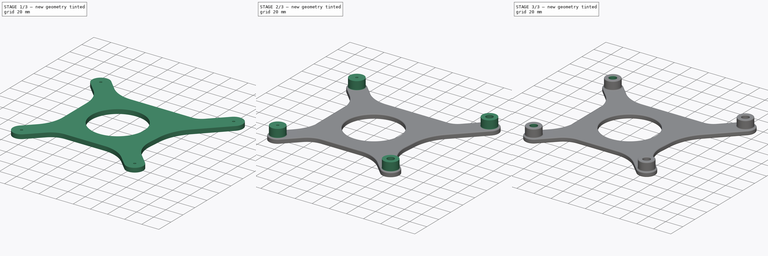
[diagram: build sequence overview — one tinted view per stage of 3, left to right]
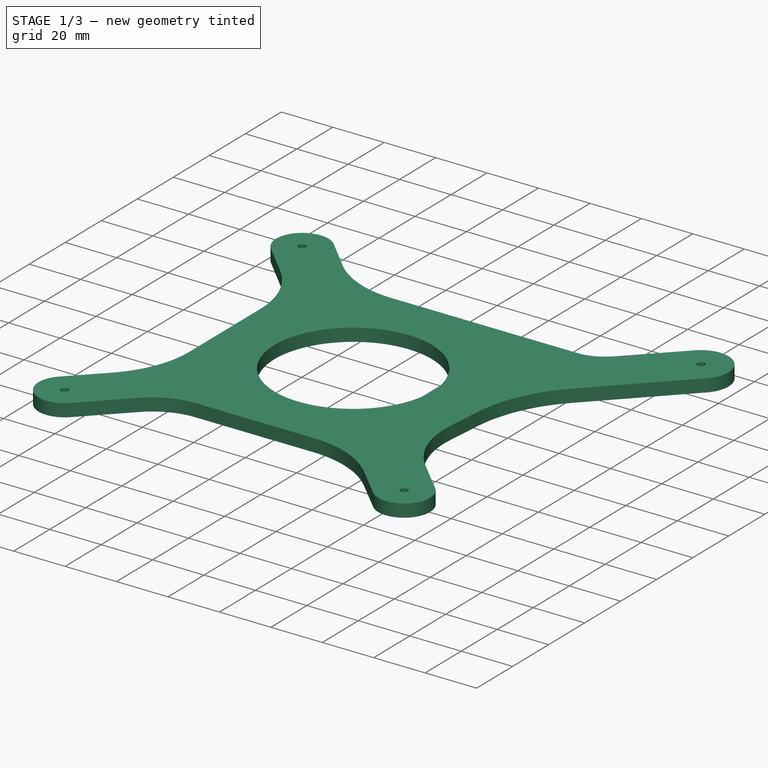
[diagram: stage 1 of 3 — iso view after this stage's code; geometry added in this stage tinted green]
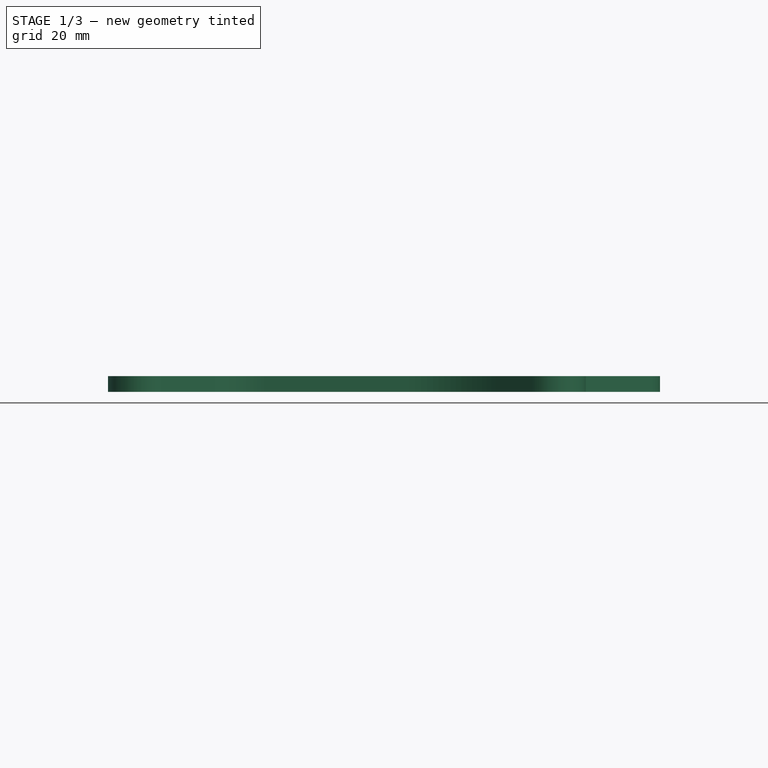
[diagram: stage 1 of 3 — front view after this stage's code; geometry added in this stage tinted green]
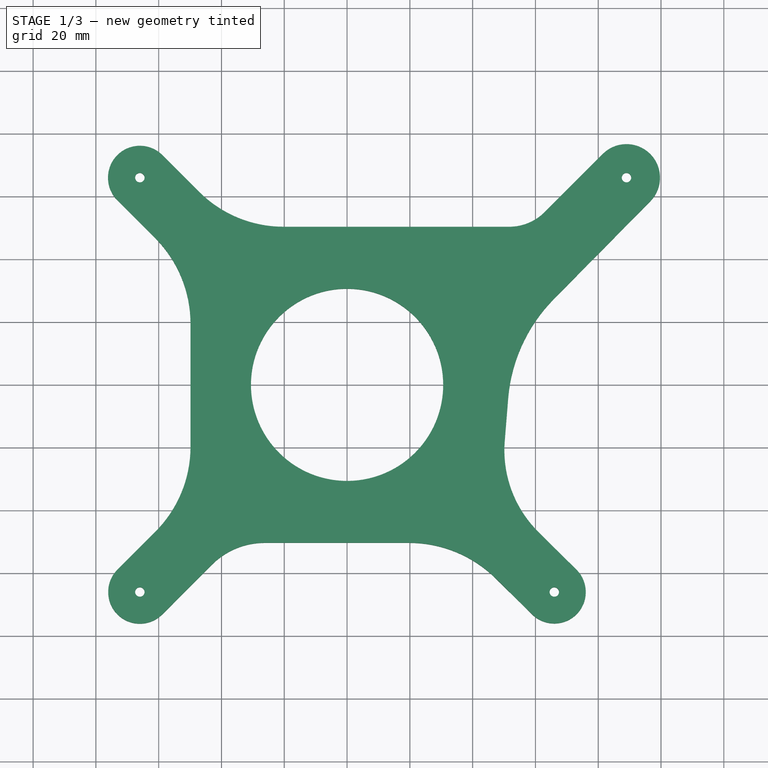
[diagram: stage 1 of 3 — top view after this stage's code; geometry added in this stage tinted green]
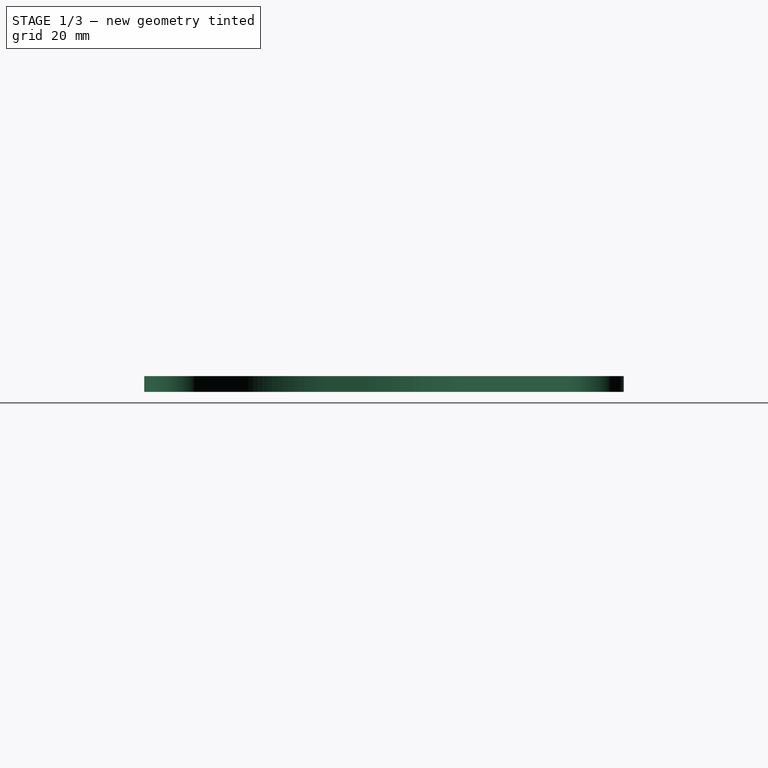
[diagram: stage 1 of 3 — right view after this stage's code; geometry added in this stage tinted green]
FCSTD DOCUMENT  (FreeCAD 1.0R39319 (Git))
Label: mitx-base
License: All rights reserved
LicenseURL: https://en.wikipedia.org/wiki/All_rights_reserved
objects: PartDesign::Fillet×4, Sketcher::SketchObject×3, PartDesign::Pad×2, PartDesign::Pocket×1, PartDesign::Body×1
note: 28 computed .brp shape members not serialized (recipe doc carries the construction recipe); baked Part::Feature solids carry a one-line shape summary decoded from their .brp

FEATURE [Sketcher::SketchObject] Sketch
  ArcFitTolerance = 1e-06
  AttachmentSupport = -> [XY_Plane]
  FullyConstrained = false
  MakeInternals = false
  MapMode = 5
  sketch-geometry (44):
    g0: LineSegment [constr] StartX=-66 StartY=-66 StartZ=0 EndX=66 EndY=-66 EndZ=0
    g1: LineSegment [constr] StartX=66 StartY=-66 StartZ=0 EndX=66 EndY=66 EndZ=0
    g2: LineSegment [constr] StartX=66 StartY=66 StartZ=0 EndX=-66 EndY=66 EndZ=0
    g3: LineSegment [constr] StartX=-66 StartY=66 StartZ=0 EndX=-66 EndY=-66 EndZ=0
    g4: GeomPoint [constr] X=0 Y=0 Z=0
    g5: LineSegment [constr] StartX=66 StartY=66 StartZ=0 EndX=89 EndY=66 EndZ=0
    g6: GeomPoint [constr] X=0 Y=0 Z=0
    g7: LineSegment [constr] StartX=-76 StartY=76 StartZ=0 EndX=-76 EndY=-76 EndZ=0
    g8: LineSegment [constr] StartX=-76 StartY=-76 StartZ=0 EndX=95 EndY=-76 EndZ=0
    g9: LineSegment [constr] StartX=95 StartY=76 StartZ=0 EndX=-76 EndY=76 EndZ=0
    g10: Circle CenterX=-66 CenterY=66 CenterZ=0 NormalX=0 NormalY=0 NormalZ=1 AngleXU=0 Radius=1.5
    g11: Circle CenterX=89 CenterY=66 CenterZ=0 NormalX=0 NormalY=0 NormalZ=1 AngleXU=0 Radius=1.5
    g12: Circle CenterX=66 CenterY=-66 CenterZ=0 NormalX=0 NormalY=0 NormalZ=1 AngleXU=0 Radius=1.5
    g13: Circle CenterX=-66 CenterY=-66 CenterZ=0 NormalX=0 NormalY=0 NormalZ=1 AngleXU=0 Radius=1.5
    g14: LineSegment StartX=51.6439 StartY=50.3493 StartZ=0 EndX=-20.2323 EndY=50.3493 EndZ=0
    g15: LineSegment StartX=-26.2143 StartY=-50.3222 StartZ=0 EndX=19.7096 EndY=-50.3222 EndZ=0
    g16: GeomPoint [constr] X=0 Y=0 Z=0
    g17: ArcOfCircle CenterX=-66 CenterY=66 CenterZ=0 NormalX=0 NormalY=0 NormalZ=1 AngleXU=0 Radius=10.15 StartAngle=0.785414 EndAngle=3.92696
    g18: LineSegment StartX=-58.823 StartY=73.1772 StartZ=0 EndX=-47.1399 EndY=61.4945 EndZ=0
    g19: LineSegment StartX=-73.1774 StartY=58.8231 StartZ=0 EndX=-61.1843 EndY=46.8293 EndZ=0
    g20: ArcOfCircle CenterX=-66 CenterY=-66 CenterZ=0 NormalX=0 NormalY=0 NormalZ=1 AngleXU=0 Radius=10.09 StartAngle=2.35616 EndAngle=5.49856
    g21: LineSegment StartX=-73.1345 StartY=-58.8651 StartZ=0 EndX=-61.0894 EndY=-46.8207 EndZ=0
    g22: LineSegment StartX=-58.8598 StartY=-73.1292 StartZ=0 EndX=-43.0644 EndY=-57.3093 EndZ=0
    g23: ArcOfCircle CenterX=89 CenterY=66 CenterZ=0 NormalX=0 NormalY=0 NormalZ=1 AngleXU=0 Radius=10.68 StartAngle=5.50439 EndAngle=8.63995
    g24: LineSegment StartX=96.6016 StartY=58.4982 StartZ=0 EndX=66 EndY=27.4894 EndZ=0
    g25: LineSegment StartX=81.4487 StartY=73.5476 StartZ=0 EndX=62.941 EndY=55.0304 EndZ=0
    g26: ArcOfCircle CenterX=66 CenterY=-66 CenterZ=0 NormalX=0 NormalY=0 NormalZ=1 AngleXU=0 Radius=10.02 StartAngle=3.93339 EndAngle=7.07336
    g27: LineSegment StartX=58.9603 StartY=-73.1304 StartZ=0 EndX=47.3497 EndY=-61.6675 EndZ=0
    g28: LineSegment StartX=73.0513 StartY=-58.8811 StartZ=0 EndX=60.968 EndY=-46.9126 EndZ=0
    g29: LineSegment StartX=-49.8685 StartY=19.5085 StartZ=0 EndX=-49.8692 EndY=-19.7347 EndZ=0
    g30: LineSegment StartX=50.2197 StartY=-17.8986 StartZ=0 EndX=51.3102 EndY=-4.4012 EndZ=0
    g31: ArcOfCircle CenterX=-88.5062 CenterY=19.5092 CenterZ=0 NormalX=0 NormalY=0 NormalZ=1 AngleXU=0 Radius=38.6377 StartAngle=6.28317 EndAngle=7.06855
    g32: GeomPoint [constr] X=-49.8682 Y=35.5124 Z=0
    g33: ArcOfCircle CenterX=-88.1745 CenterY=-19.734 CenterZ=0 NormalX=0 NormalY=0 NormalZ=1 AngleXU=0 Radius=38.3053 StartAngle=5.49776 EndAngle=6.28317
    g34: GeomPoint [constr] X=-49.8695 Y=-35.6015 Z=0
    g35: ArcOfCircle CenterX=-20.2323 CenterY=88.4029 CenterZ=0 NormalX=0 NormalY=0 NormalZ=1 AngleXU=0 Radius=38.0537 StartAngle=3.92701 EndAngle=4.71239
    g36: GeomPoint [constr] X=-35.9943 Y=50.3493 Z=0
    g37: ArcOfCircle CenterX=51.6439 CenterY=66.3217 CenterZ=0 NormalX=0 NormalY=0 NormalZ=1 AngleXU=0 Radius=15.9725 StartAngle=4.71239 EndAngle=5.49804
    g38: ArcOfCircle CenterX=102.196 CenterY=-8.51226 CenterZ=0 NormalX=0 NormalY=0 NormalZ=1 AngleXU=0 Radius=51.0518 StartAngle=2.35889 EndAngle=3.06098
    g39: ArcOfCircle CenterX=-26.2143 CenterY=-74.1334 CenterZ=0 NormalX=0 NormalY=0 NormalZ=1 AngleXU=0 Radius=23.8112 StartAngle=1.5708 EndAngle=2.35697
    g40: GeomPoint [constr] X=-36.088 Y=-50.3222 Z=0
    g41: ArcOfCircle CenterX=19.7096 CenterY=-89.6638 CenterZ=0 NormalX=0 NormalY=0 NormalZ=1 AngleXU=0 Radius=39.3416 StartAngle=0.791801 EndAngle=1.5708
    g42: GeomPoint [constr] X=35.8581 Y=-50.3222 Z=0
    g43: ArcOfCircle CenterX=86.7807 CenterY=-20.8523 CenterZ=0 NormalX=0 NormalY=0 NormalZ=1 AngleXU=0 Radius=36.6801 StartAngle=3.06098 EndAngle=3.93176
  constraints (77):
    c: Coincident(g0,g1)
    c: Coincident(g1,g2)
    c: Coincident(g2,g3)
    c: Coincident(g3,g0)
    c: Horizontal(g0)
    c: Horizontal(g2)
    c: Vertical(g1)
    c: Vertical(g3)
    c: Symmetric(g2,g0,g4)
    c: Distance(g1,g3) = 132
    c: Distance(g0,g2) = 132
    c: Coincident(g4,g-1)
    c: Coincident(g5,g1)
    c: Horizontal(g5)
    c: DistanceX(g2,g5) = 155
    c: Coincident(g6,g4)
    c: Coincident(g7,g8)
    c: Coincident(g9,g7)
    c: Vertical(g7)
    c: Horizontal(g8)
    c: Horizontal(g9)
    c: DistanceX(g7,g2) = 10
    c: DistanceY(g2,g7) = 10
    c: DistanceY(g8,g0) = 10
    c: Diameter(g10) = 3
    c: Coincident(g10,g2)
    c: Coincident(g11,g5)
    c: Diameter(g12) = 3
    c: Coincident(g12,g0)
    c: Diameter(g13) = 3
    c: Coincident(g13,g0)
    c: Horizontal(g14)
    c: Horizontal(g15)
    c: Coincident(g16,g4)
    c: Tangent(g17,g18) = 1.5708
    c: Tangent(g17,g19) = -1.5708
    c: Coincident(g17,g2)
    c: Tangent(g20,g21) = 1.5708
    c: Tangent(g20,g22) = -1.5708
    c: Coincident(g20,g0)
    c: Tangent(g23,g24) = 1.5708
    c: Coincident(g23,g5)
    c: Tangent(g26,g27) = 1.5708
    c: Tangent(g26,g28) = -1.5708
    c: Coincident(g26,g0)
    c: PointOnObject(g32,g19)
    c: PointOnObject(g32,g29)
    c: Tangent(g19,g31) = 1.5708
    c: Tangent(g29,g31) = 1.5708
    c: PointOnObject(g34,g29)
    c: PointOnObject(g34,g21)
    c: Tangent(g29,g33) = 1.5708
    c: Tangent(g21,g33) = -1.5708
    c: PointOnObject(g36,g18)
    c: PointOnObject(g36,g14)
    c: Tangent(g18,g35) = -1.5708
    c: Tangent(g14,g35) = 1.5708
    c: Tangent(g14,g37) = 1.5708
    c: Tangent(g25,g37) = 1.5708
    c: Tangent(g30,g38) = 1.5708
    c: PointOnObject(g40,g22)
    c: PointOnObject(g40,g15)
    c: Tangent(g22,g39) = 1.5708
    c: Tangent(g15,g39) = 1.5708
    c: PointOnObject(g42,g15)
    c: PointOnObject(g42,g27)
    c: Tangent(g15,g41) = 1.5708
    c: Tangent(g27,g41) = -1.5708
    c: Tangent(g28,g43) = 1.5708
    c: Tangent(g30,g43) = 1.5708
    c: PointOnObject(g24,g1)
    c: Coincident(g24,g38)
    c: Diameter(g11) = 3
    c: Radius(g23) = 10.68
    c: Radius(g26) = 10.02
    c: Radius(g20) = 10.09
    c: Radius(g17) = 10.15
FEATURE [PartDesign::Pad] Pad
  Direction = (0,0,1)
  Length = 5
  Length2 = 10
  Profile = -> Sketch
  ReferenceAxis = -> Sketch [N_Axis]
  Refine = true
  Suppressed = false
  Type = 0
FEATURE [Sketcher::SketchObject] Sketch001
  ArcFitTolerance = 1e-06
  AttachmentSupport = -> [XY_Plane]
  FullyConstrained = false
  MakeInternals = false
  MapMode = 5
  sketch-geometry (1):
    g0: Circle CenterX=0 CenterY=0 CenterZ=0 NormalX=0 NormalY=0 NormalZ=1 AngleXU=0 Radius=30.62
  constraints (1):
    c: Radius(g0) = 30.62
FEATURE [PartDesign::Pocket] Pocket
  BaseFeature = -> Pad
  Direction = (0,0,-1)
  Length = 5
  Length2 = 5
  Profile = -> Sketch001
  ReferenceAxis = -> Sketch001 [N_Axis]
  Refine = true
  Reversed = true
  Suppressed = false
  Type = 0
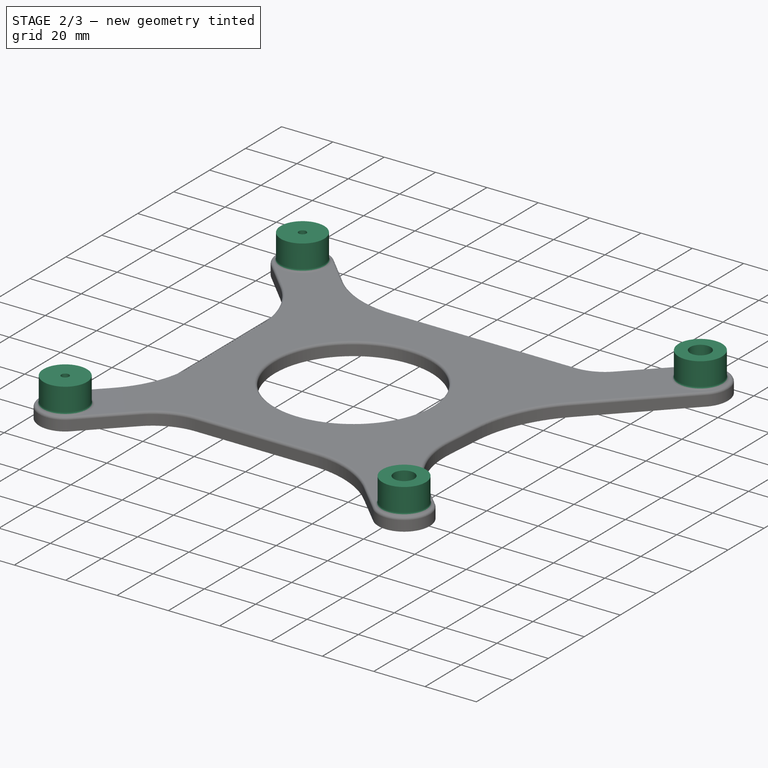
[diagram: stage 2 of 3 — iso view after this stage's code; geometry added in this stage tinted green]
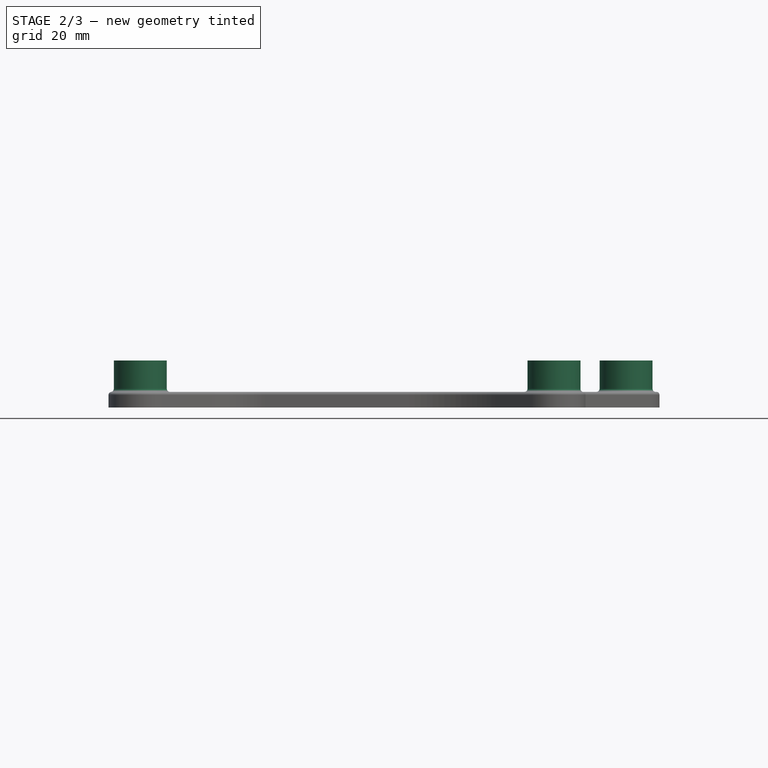
[diagram: stage 2 of 3 — front view after this stage's code; geometry added in this stage tinted green]
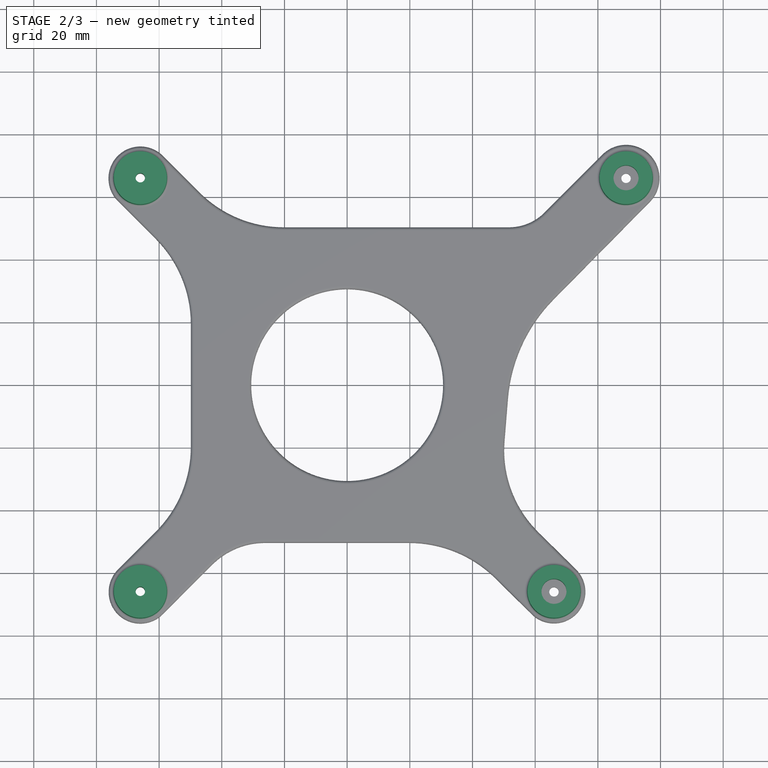
[diagram: stage 2 of 3 — top view after this stage's code; geometry added in this stage tinted green]
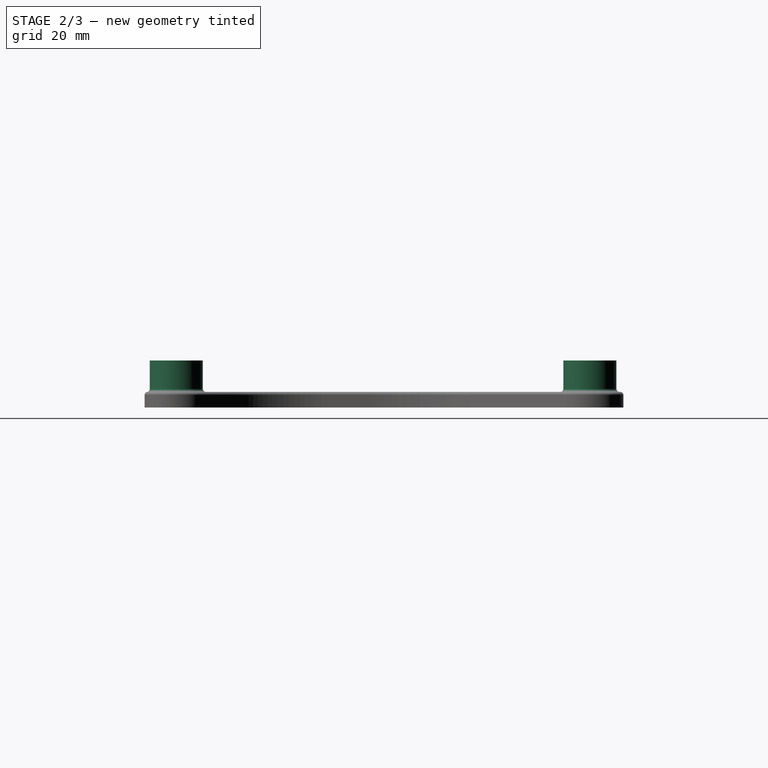
[diagram: stage 2 of 3 — right view after this stage's code; geometry added in this stage tinted green]
FEATURE [Sketcher::SketchObject] Sketch002
  ArcFitTolerance = 1e-06
  AttachmentSupport = -> [XY_Plane]
  ExternalGeometry = -> [Pocket]
  FullyConstrained = false
  MakeInternals = false
  MapMode = 5
  sketch-geometry (8):
    g0: Circle CenterX=-66 CenterY=-66 CenterZ=0 NormalX=0 NormalY=0 NormalZ=1 AngleXU=0 Radius=1.50001
    g1: Circle CenterX=66 CenterY=-66 CenterZ=0 NormalX=0 NormalY=0 NormalZ=1 AngleXU=0 Radius=4
    g2: Circle CenterX=89 CenterY=66 CenterZ=0 NormalX=0 NormalY=0 NormalZ=1 AngleXU=0 Radius=4
    g3: Circle CenterX=-66 CenterY=66 CenterZ=0 NormalX=0 NormalY=0 NormalZ=1 AngleXU=0 Radius=1.50001
    g4: Circle CenterX=89 CenterY=66 CenterZ=0 NormalX=0 NormalY=0 NormalZ=1 AngleXU=0 Radius=8.45
    g5: Circle CenterX=-66 CenterY=-66 CenterZ=0 NormalX=0 NormalY=0 NormalZ=1 AngleXU=0 Radius=8.45341
    g6: Circle CenterX=66 CenterY=-66 CenterZ=0 NormalX=0 NormalY=0 NormalZ=1 AngleXU=0 Radius=8.45341
    g7: Circle CenterX=-66 CenterY=66 CenterZ=0 NormalX=0 NormalY=0 NormalZ=1 AngleXU=0 Radius=8.45341
  constraints (4):
    c: Tangent(g0,g-3)
    c: Tangent(g3,g-6)
    c: Radius(g4) = 8.45
    c: Radius(g2) = 4
FEATURE [PartDesign::Pad] Pad001
  BaseFeature = -> Pocket
  Direction = (0,0,1)
  Length = 15
  Length2 = 10
  Profile = -> Sketch002
  ReferenceAxis = -> Sketch002 [N_Axis]
  Refine = true
  Suppressed = false
  Type = 0
FEATURE [PartDesign::Fillet] Fillet
  Base = -> Pad001 [Edge14]
  BaseFeature = -> Pad001
  Radius = 1
  Refine = true
  SupportTransform = false
  Suppressed = false
  UseAllEdges = false
FEATURE [PartDesign::Fillet] Fillet001
  Base = -> Fillet [Face8]
  BaseFeature = -> Fillet
  Radius = 1
  Refine = true
  SupportTransform = false
  Suppressed = false
  UseAllEdges = false
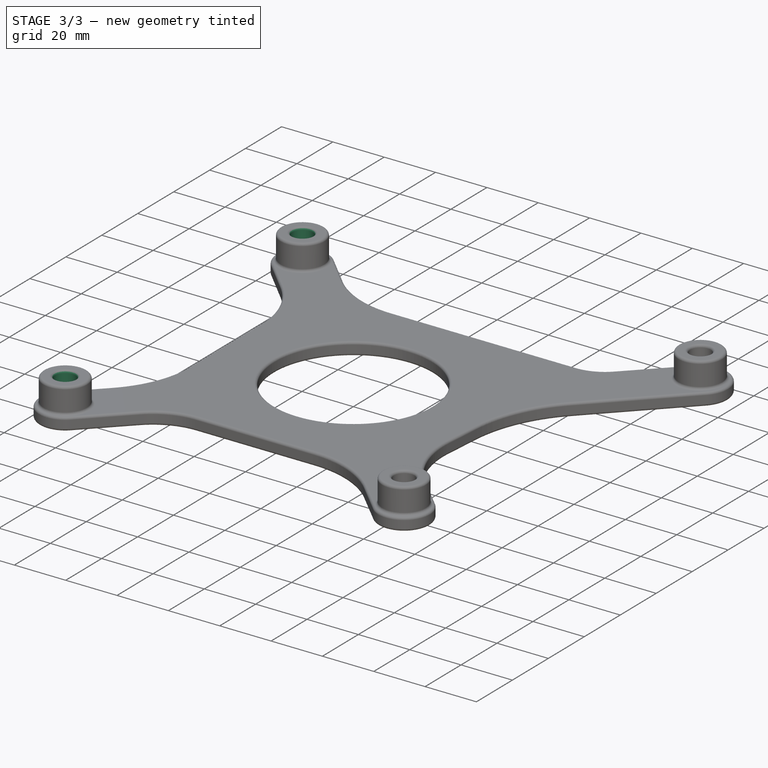
[diagram: stage 3 of 3 — iso view after this stage's code; geometry added in this stage tinted green]
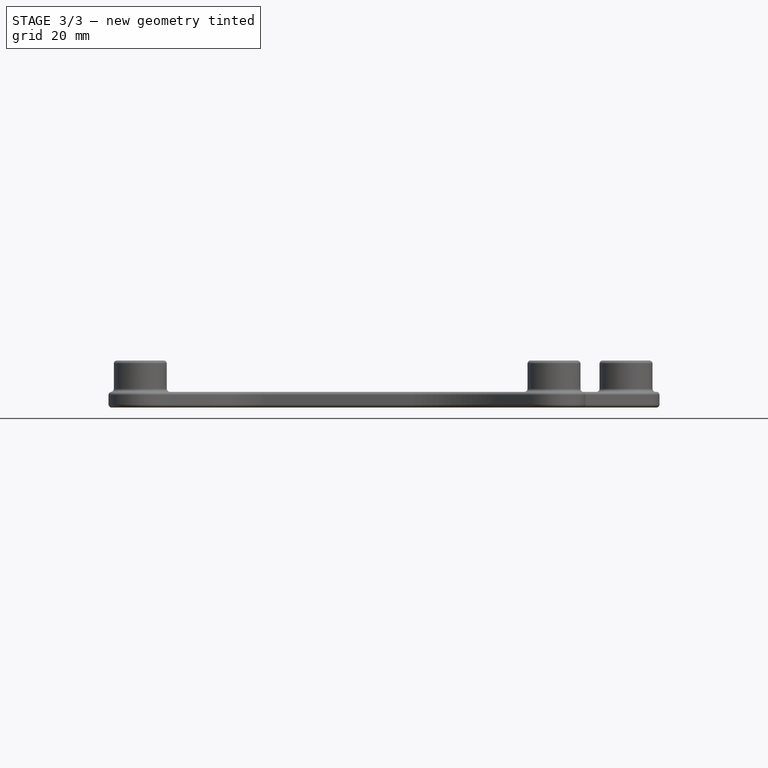
[diagram: stage 3 of 3 — front view after this stage's code; geometry added in this stage tinted green]
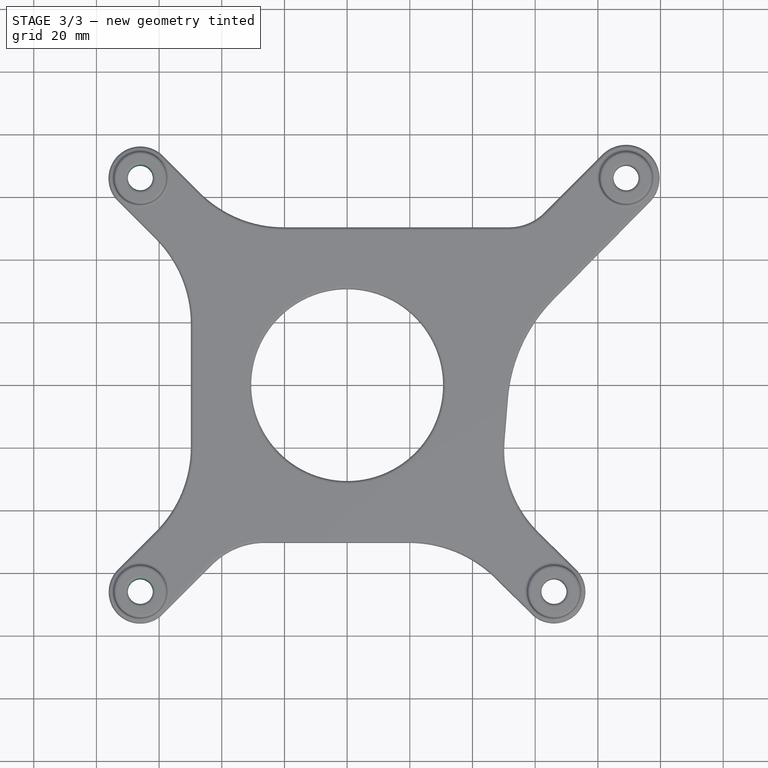
[diagram: stage 3 of 3 — top view after this stage's code; geometry added in this stage tinted green]
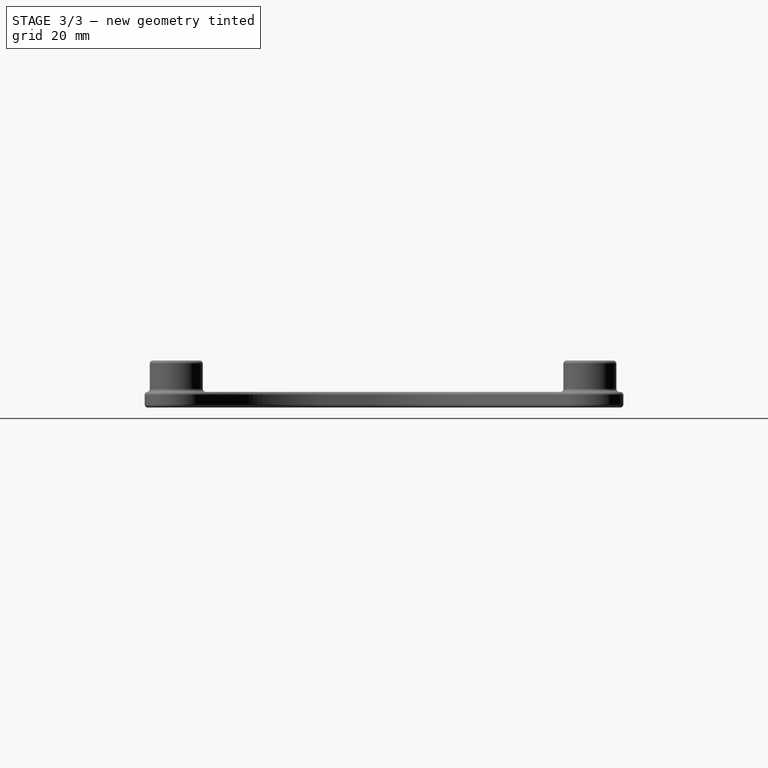
[diagram: stage 3 of 3 — right view after this stage's code; geometry added in this stage tinted green]
FEATURE [PartDesign::Fillet] Fillet002
  Base = -> Fillet001 [?Edge183]
  BaseFeature = -> Fillet001
  Radius = 1
  Refine = true
  SupportTransform = false
  Suppressed = false
  UseAllEdges = false
FEATURE [PartDesign::Fillet] Fillet003
  Base = -> Fillet002 [Edge133]
  BaseFeature = -> Fillet002
  Radius = 1
  Refine = true
  SupportTransform = false
  Suppressed = false
  UseAllEdges = true
FEATURE [PartDesign::Body] Body
  AllowCompound = false
  Group = -> [Sketch,Pad,Sketch001,Pocket,Sketch002,Pad001,Fillet,Fillet001,Fillet002,Fillet003]
  Origin = -> Origin
  Tip = -> Fillet003
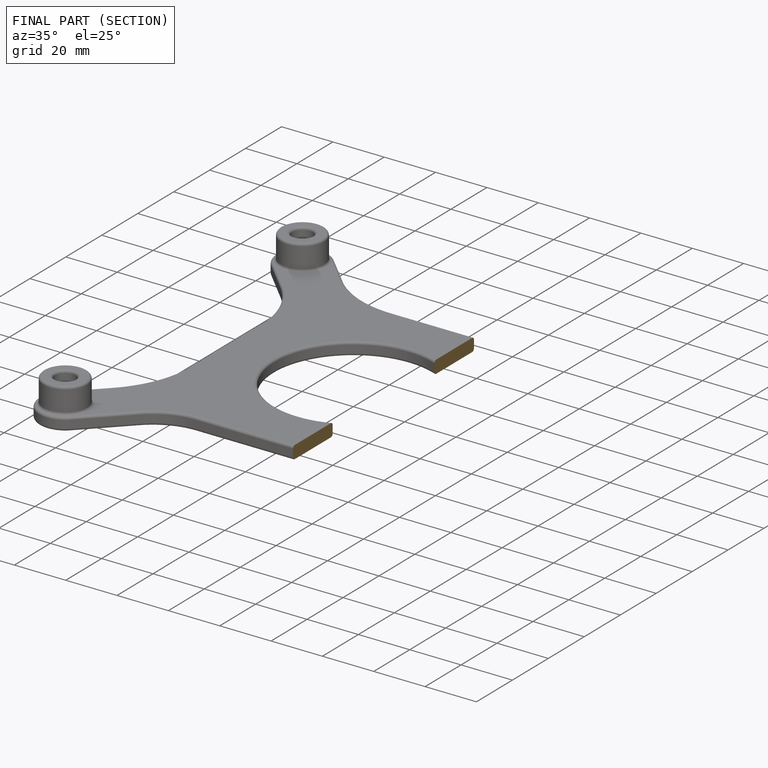
[diagram: finished part — half-section view (interior)]
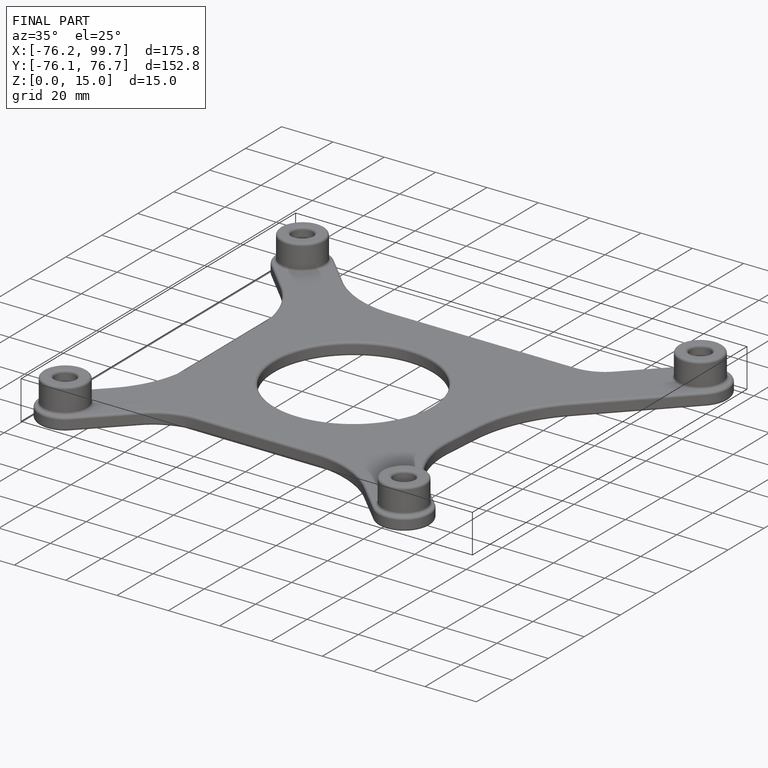
[diagram: finished part — iso view with bounding-box wireframe]
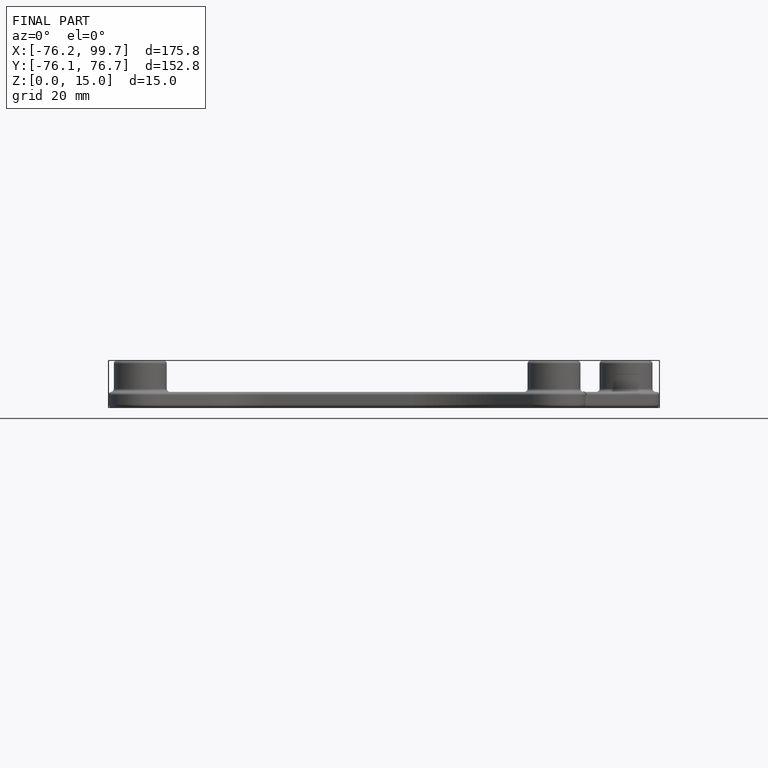
[diagram: finished part — front view with bounding-box wireframe]
